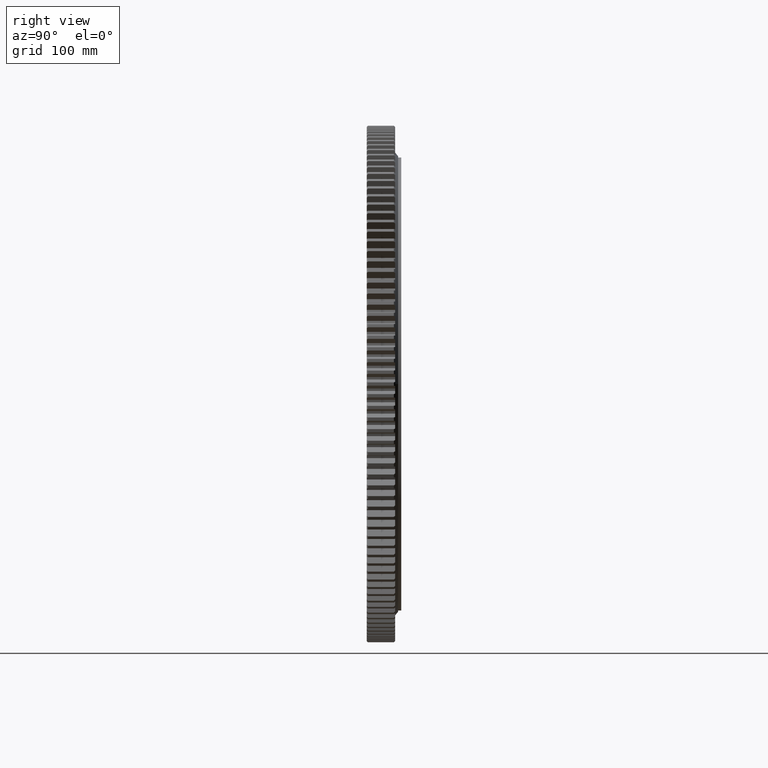
[diagram: clean part render]
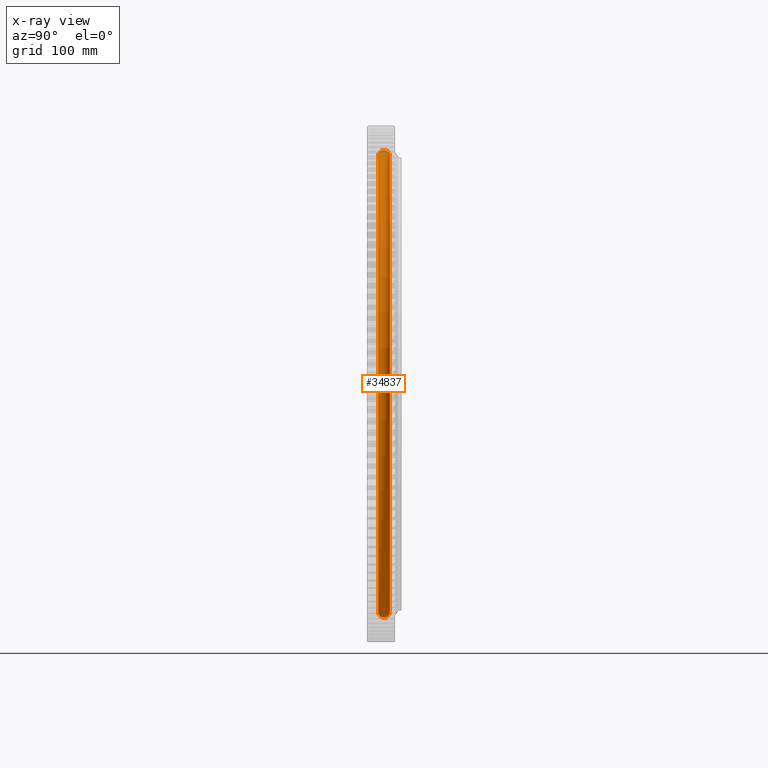
[diagram: x-ray — body ghosted, one internal face saturated and labeled with its STEP entity id]
A machine part, right view, then the same camera in x-ray: the body is ghosted and one INTERNAL B-rep face — a face not visible from any outside direction — is saturated and labeled: STEP entity #34837.
In plain terms, the highlighted toroidal blend (fillet) surface has major radius 370.5 mm and minor (blend) radius 9.75 mm.
Its self-contained STEP definition (entity closure, byte-faithful):
#708 = CARTESIAN_POINT ( 'NONE',  ( 0.0000000000000000000, -9.486832980505107900, 372.7500000000000600 ) ) ;
#1417 = VERTEX_POINT ( 'NONE', #708 ) ;
#1830 = AXIS2_PLACEMENT_3D ( 'NONE', #10804, #10794, #10590 ) ;
#2826 = CARTESIAN_POINT ( 'NONE',  ( 0.0000000000000000000, 0.0000000000000000000, 0.0000000000000000000 ) ) ;
#5374 = CIRCLE ( 'NONE', #13258, 9.749999999999980500 ) ;
#5669 = DIRECTION ( 'NONE',  ( 0.0000000000000000000, 0.0000000000000000000, 1.000000000000000000 ) ) ;
#5708 = EDGE_CURVE ( 'NONE', #1417, #31726, #13852, .T. ) ;
#5733 = EDGE_CURVE ( 'NONE', #1417, #17670, #5374, .T. ) ;
#5960 = AXIS2_PLACEMENT_3D ( 'NONE', #6204, #24851, #26791 ) ;
#6204 = CARTESIAN_POINT ( 'NONE',  ( 4.537316390840942900E-014, 0.0000000000000000000, -370.4999999999999400 ) ) ;
#8260 = CIRCLE ( 'NONE', #17438, 372.7500000000000600 ) ;
#9062 = VERTEX_POINT ( 'NONE', #34838 ) ;
#9865 = DIRECTION ( 'NONE',  ( 0.0000000000000000000, 0.0000000000000000000, 1.000000000000000000 ) ) ;
#9911 = DIRECTION ( 'NONE',  ( -1.000000000000000000, 0.0000000000000000000, 0.0000000000000000000 ) ) ;
#9921 = CARTESIAN_POINT ( 'NONE',  ( 0.0000000000000000000, 0.0000000000000000000, 370.4999999999999400 ) ) ;
#10590 = DIRECTION ( 'NONE',  ( 0.0000000000000000000, 0.0000000000000000000, 1.000000000000000000 ) ) ;
#10794 = DIRECTION ( 'NONE',  ( -0.0000000000000000000, 1.000000000000000000, -0.0000000000000000000 ) ) ;
#10804 = CARTESIAN_POINT ( 'NONE',  ( 0.0000000000000000000, -9.486832980505107900, 0.0000000000000000000 ) ) ;
#10872 = ORIENTED_EDGE ( 'NONE', *, *, #5708, .F. ) ;
#10989 = CARTESIAN_POINT ( 'NONE',  ( 0.0000000000000000000, 9.486832980505104400, 372.7500000000000600 ) ) ;
#11302 = EDGE_CURVE ( 'NONE', #31726, #9062, #35092, .T. ) ;
#12832 = CARTESIAN_POINT ( 'NONE',  ( 0.0000000000000000000, 9.486832980505104400, 0.0000000000000000000 ) ) ;
#13258 = AXIS2_PLACEMENT_3D ( 'NONE', #9921, #9911, #9865 ) ;
#13852 = CIRCLE ( 'NONE', #1830, 372.7500000000000600 ) ;
#15077 = TOROIDAL_SURFACE ( 'NONE', #22995, 370.4999999999999400, 9.750000000000000000 ) ;
#15676 = DIRECTION ( 'NONE',  ( 0.0000000000000000000, 0.0000000000000000000, 1.000000000000000000 ) ) ;
#15873 = EDGE_LOOP ( 'NONE', ( #31092, #10872, #29544, #29136 ) ) ;
#17438 = AXIS2_PLACEMENT_3D ( 'NONE', #12832, #32481, #15676 ) ;
#17670 = VERTEX_POINT ( 'NONE', #10989 ) ;
#18277 = CARTESIAN_POINT ( 'NONE',  ( 4.564870943821760200E-014, -9.486832980505107900, -372.7500000000000600 ) ) ;
#22995 = AXIS2_PLACEMENT_3D ( 'NONE', #2826, #33745, #5669 ) ;
#24851 = DIRECTION ( 'NONE',  ( 1.000000000000000000, 0.0000000000000000000, 1.224646799147353200E-016 ) ) ;
#26791 = DIRECTION ( 'NONE',  ( 1.224646799147356200E-016, 0.0000000000000000000, -1.000000000000000000 ) ) ;
#29136 = ORIENTED_EDGE ( 'NONE', *, *, #29194, .T. ) ;
#29194 = EDGE_CURVE ( 'NONE', #17670, #9062, #8260, .T. ) ;
#29544 = ORIENTED_EDGE ( 'NONE', *, *, #5733, .T. ) ;
#30070 = FACE_OUTER_BOUND ( 'NONE', #15873, .T. ) ;
#31092 = ORIENTED_EDGE ( 'NONE', *, *, #11302, .F. ) ;
#31726 = VERTEX_POINT ( 'NONE', #18277 ) ;
#32481 = DIRECTION ( 'NONE',  ( -0.0000000000000000000, 1.000000000000000000, -0.0000000000000000000 ) ) ;
#33745 = DIRECTION ( 'NONE',  ( -0.0000000000000000000, 1.000000000000000000, -0.0000000000000000000 ) ) ;
#34837 = ADVANCED_FACE ( 'NONE', ( #30070 ), #15077, .F. ) ;
#34838 = CARTESIAN_POINT ( 'NONE',  ( 4.564870943821760200E-014, 9.486832980505104400, -372.7500000000000600 ) ) ;
#35092 = CIRCLE ( 'NONE', #5960, 9.749999999999980500 ) ;